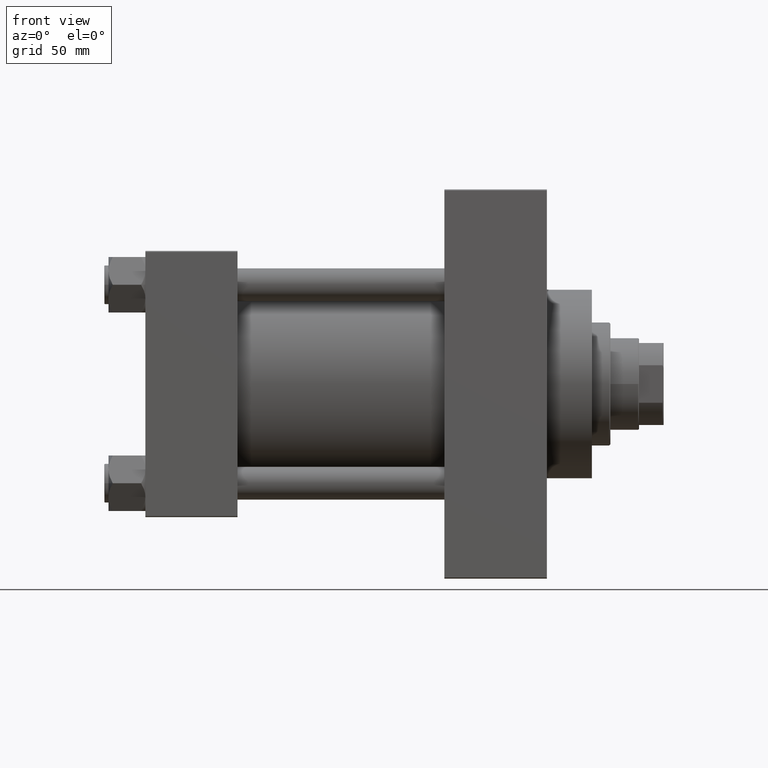
[diagram: clean part render]
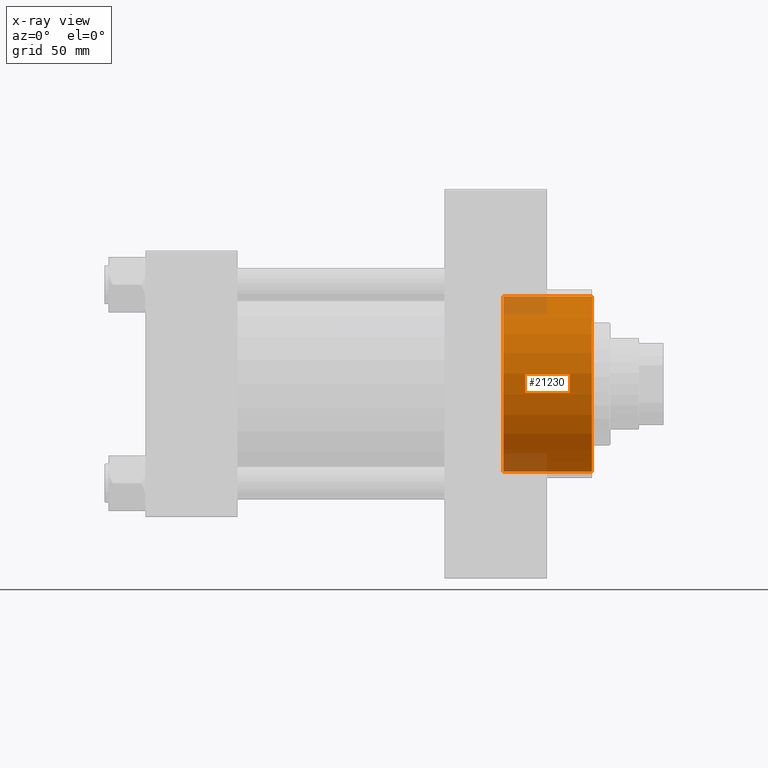
[diagram: x-ray — body ghosted, one internal face saturated and labeled with its STEP entity id]
A machine part, front view, then the same camera in x-ray: the body is ghosted and one INTERNAL B-rep face — a face not visible from any outside direction — is saturated and labeled: STEP entity #21230.
In plain terms, the highlighted cylindrical surface (partial cylindrical patch) has radius 42.75 mm, axis along (1, 0, 0).
Its self-contained STEP definition (entity closure, byte-faithful):
#4931 = VERTEX_POINT ( 'NONE', #25935 ) ;
#6727 = ORIENTED_EDGE ( 'NONE', *, *, #24627, .T. ) ;
#7118 = EDGE_CURVE ( 'NONE', #28581, #17543, #16684, .T. ) ;
#8062 = DIRECTION ( 'NONE',  ( 1.000000000000000000, -0.000000000000000000, -0.000000000000000000 ) ) ;
#8595 = CARTESIAN_POINT ( 'NONE',  ( 174.7400000000000091, 5.235365066354935472E-15, 42.75000000000000000 ) ) ;
#9107 = DIRECTION ( 'NONE',  ( 0.000000000000000000, 0.000000000000000000, -1.000000000000000000 ) ) ;
#9569 = CARTESIAN_POINT ( 'NONE',  ( 174.7400000000000091, 0.000000000000000000, 0.000000000000000000 ) ) ;
#11005 = EDGE_CURVE ( 'NONE', #18331, #4931, #22977, .T. ) ;
#13396 = VECTOR ( 'NONE', #20925, 1000.000000000000000 ) ;
#15099 = CARTESIAN_POINT ( 'NONE',  ( 174.7400000000000091, 5.235365066354935472E-15, 42.75000000000000000 ) ) ;
#16387 = CARTESIAN_POINT ( 'NONE',  ( 174.7400000000000091, 0.000000000000000000, -42.75000000000000000 ) ) ;
#16584 = DIRECTION ( 'NONE',  ( 1.000000000000000000, 0.000000000000000000, 0.000000000000000000 ) ) ;
#16684 = CIRCLE ( 'NONE', #43617, 42.75000000000000000 ) ;
#17252 = ORIENTED_EDGE ( 'NONE', *, *, #11005, .F. ) ;
#17543 = VERTEX_POINT ( 'NONE', #38170 ) ;
#17830 = AXIS2_PLACEMENT_3D ( 'NONE', #36760, #8062, #33618 ) ;
#18331 = VERTEX_POINT ( 'NONE', #15099 ) ;
#20172 = LINE ( 'NONE', #8595, #39550 ) ;
#20925 = DIRECTION ( 'NONE',  ( 1.000000000000000000, -0.000000000000000000, -0.000000000000000000 ) ) ;
#21230 = ADVANCED_FACE ( 'NONE', ( #32421 ), #47119, .F. ) ;
#22221 = DIRECTION ( 'NONE',  ( 1.000000000000000000, 0.000000000000000000, 0.000000000000000000 ) ) ;
#22977 = CIRCLE ( 'NONE', #43757, 42.75000000000000000 ) ;
#24627 = EDGE_CURVE ( 'NONE', #18331, #28581, #20172, .T. ) ;
#24772 = LINE ( 'NONE', #16387, #13396 ) ;
#25935 = CARTESIAN_POINT ( 'NONE',  ( 174.7400000000000091, 0.000000000000000000, -42.75000000000000000 ) ) ;
#26385 = EDGE_CURVE ( 'NONE', #4931, #17543, #24772, .T. ) ;
#27565 = EDGE_LOOP ( 'NONE', ( #17252, #6727, #45452, #38908 ) ) ;
#28581 = VERTEX_POINT ( 'NONE', #46751 ) ;
#28960 = CARTESIAN_POINT ( 'NONE',  ( 218.0000000000000000, 0.000000000000000000, 0.000000000000000000 ) ) ;
#31012 = DIRECTION ( 'NONE',  ( 1.000000000000000000, -0.000000000000000000, -0.000000000000000000 ) ) ;
#32421 = FACE_OUTER_BOUND ( 'NONE', #27565, .T. ) ;
#32591 = DIRECTION ( 'NONE',  ( 0.000000000000000000, 0.000000000000000000, -1.000000000000000000 ) ) ;
#33618 = DIRECTION ( 'NONE',  ( 0.000000000000000000, 0.000000000000000000, -1.000000000000000000 ) ) ;
#36760 = CARTESIAN_POINT ( 'NONE',  ( 174.7400000000000091, 0.000000000000000000, 0.000000000000000000 ) ) ;
#38170 = CARTESIAN_POINT ( 'NONE',  ( 218.0000000000000000, 0.000000000000000000, -42.75000000000000000 ) ) ;
#38908 = ORIENTED_EDGE ( 'NONE', *, *, #26385, .F. ) ;
#39550 = VECTOR ( 'NONE', #31012, 1000.000000000000000 ) ;
#43617 = AXIS2_PLACEMENT_3D ( 'NONE', #28960, #22221, #32591 ) ;
#43757 = AXIS2_PLACEMENT_3D ( 'NONE', #9569, #16584, #9107 ) ;
#45452 = ORIENTED_EDGE ( 'NONE', *, *, #7118, .T. ) ;
#46751 = CARTESIAN_POINT ( 'NONE',  ( 218.0000000000000000, 5.235365066354935472E-15, 42.75000000000000000 ) ) ;
#47119 = CYLINDRICAL_SURFACE ( 'NONE', #17830, 42.75000000000000000 ) ;